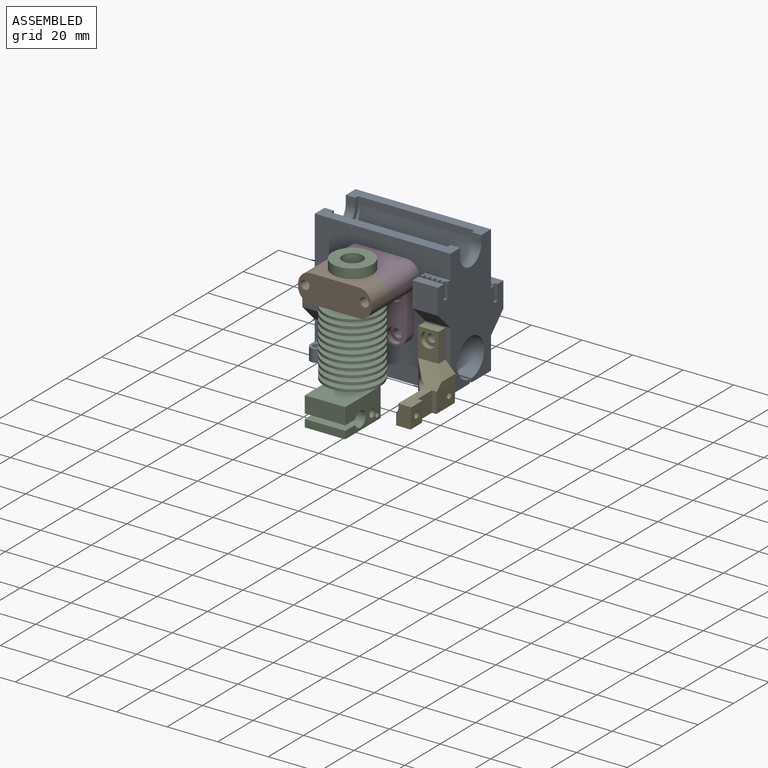
[diagram: assembled view]
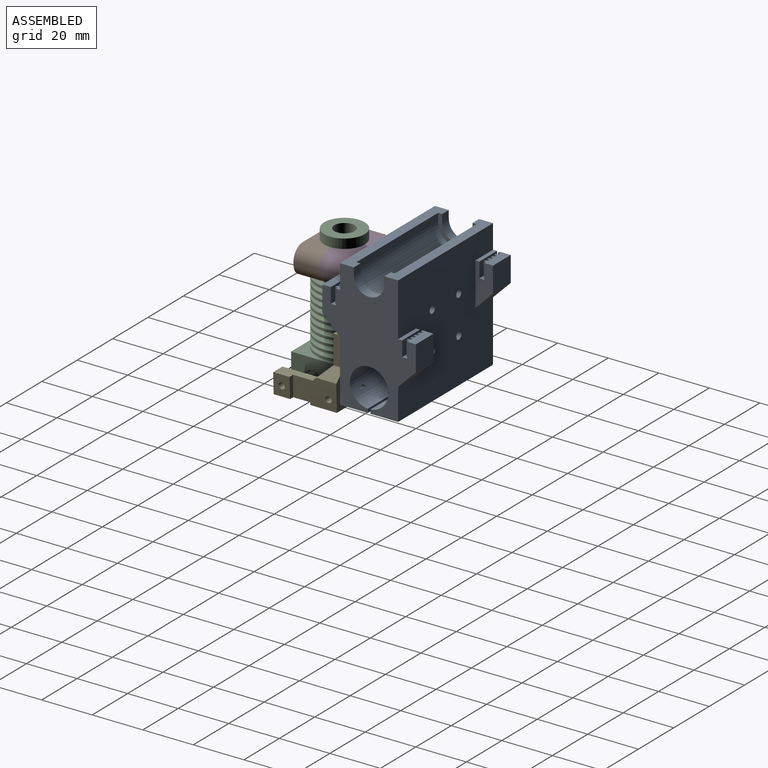
[diagram: assembled view, second angle]
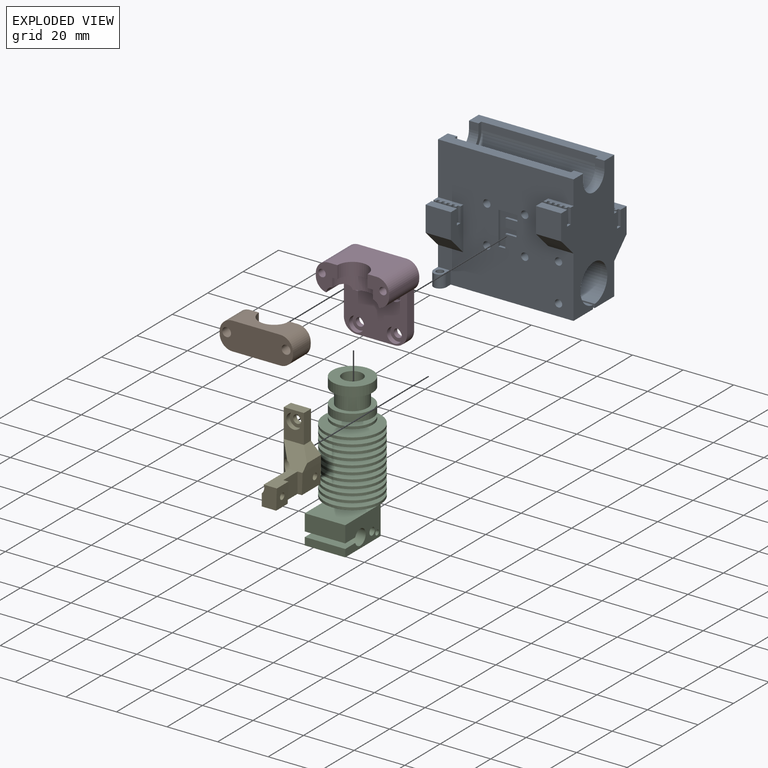
[diagram: exploded view]
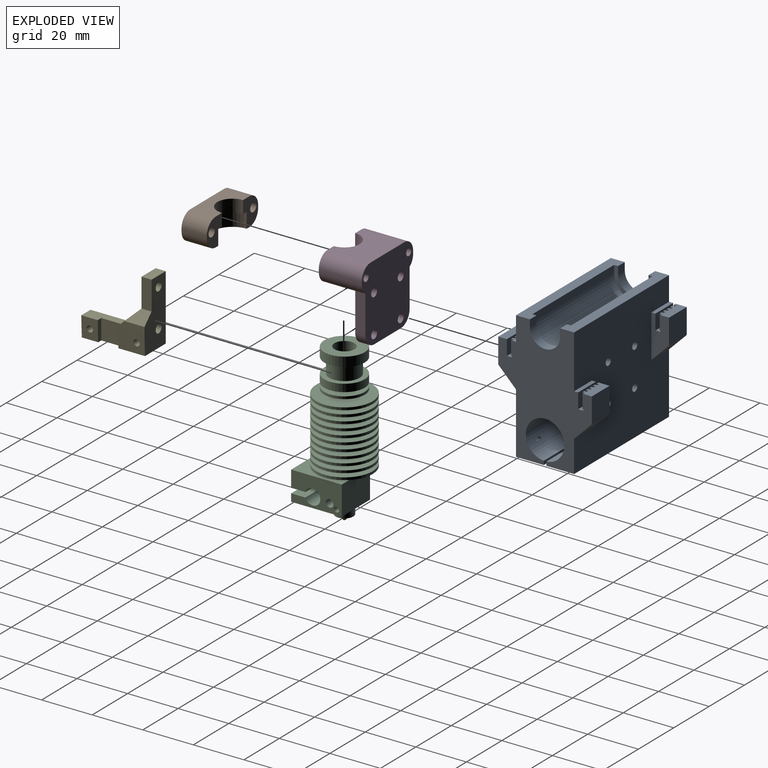
[diagram: exploded view, second angle]
ASSEMBLY  parts=5 mates=4
PART A: 149 faces, bbox 53.6x37x50.6 mm
  f0: plane 53.6x50.6mm, normal (0,-1,0), area 2250.2mm2, adj f1,f6,f7,f8,f16,f18,f19,f29
  f1: plane 50.6x37mm, normal (-1,0,0), area 1077.8mm2, adj f0,f2,f5,f8,f12,f17,f18,f19
  f2: plane 10x4.4mm, normal (0,0,1), area 39mm2, adj f1,f80,f81,f103,f104,f105,f106,f107
  f3: plane 17x7mm, normal (-1,0,0), area 88.5mm2, adj f4,f5,f77,f78,f94,f95,f102,f124
  f4: plane 10x4.4mm, normal (0,0,1), area 39mm2, adj f3,f16,f78,f82,f83,f84,f85,f86
  f5: plane 53.6x50.6mm, normal (0,1,0), area 2345.7mm2, adj f1,f3,f12,f16,f17,f77,f79,f80
  f6: plane 10x2.6mm, normal (0,0,1), area 21mm2, adj f0,f7,f16,f56,f57,f58,f59,f60
  f7: plane 17x7mm, normal (-1,0,0), area 88.5mm2, adj f0,f6,f31,f32,f33,f68,f69,f76
  f8: plane 10x2.6mm, normal (0,0,1), area 21mm2, adj f0,f1,f29,f35,f36,f37,f38,f39
  f9: plane 46.1x3mm, normal (0,-1,0), area 138.3mm2, adj f10,f12,f23,f27
  f10: cylinder r=7.6mm len=46.1mm, axis (-1,0,0), area 1100.7mm2, adj f9,f11,f23,f27
  f11: plane 46.1x3mm, normal (0,1,0), area 138.3mm2, adj f10,f19,f23,f27
  f12: plane 53.6x5.5mm, normal (0,0,1), area 221mm2, adj f1,f5,f9,f15,f16,f23,f24,f27
  f13: cylinder r=6mm len=12mm, axis (-1,0,0), area 70.7mm2, adj f14,f15,f16,f23
  f14: plane 3.75x3mm, normal (0,1,0), area 11.2mm2, adj f13,f16,f19,f23
  f15: plane 3.75x3mm, normal (0,-1,0), area 11.2mm2, adj f12,f13,f16,f23
  f16: plane 50.6x37mm, normal (1,0,0), area 1053.3mm2, adj f0,f4,f5,f6,f12,f13,f14,f15
  f17: plane 53.6x11mm, normal (0,0,-1), area 589.6mm2, adj f1,f5,f16,f21
  f18: plane 53.6x16mm, normal (0,0,-1), area 605.3mm2, adj f0,f1,f16,f22,f146,f147,f148
  f19: plane 53.6x5.5mm, normal (0,0,1), area 221mm2, adj f0,f1,f11,f14,f16,f23,f25,f27
  f20: cylinder r=7.6mm len=53.6mm, axis (-1,0,0), area 2489.8mm2, adj f1,f16,f21,f22,f127,f128,f130,f131
  f21: plane 53.6x1.52mm, normal (0,-1,0), area 81.3mm2, adj f1,f16,f17,f20
  f22: plane 53.6x1.52mm, normal (0,1,0), area 81.3mm2, adj f1,f16,f18,f20
  f23: plane 15.2x10.6mm, normal (-1,0,0), area 43.8mm2, adj f9,f10,f11,f12,f13,f14,f15,f19
  f24: plane 3.75x3mm, normal (0,-1,0), area 11.2mm2, adj f1,f12,f26,f27
  f25: plane 3.75x3mm, normal (0,1,0), area 11.2mm2, adj f1,f19,f26,f27
  f26: cylinder r=6mm len=12mm, axis (-1,0,0), area 70.7mm2, adj f1,f24,f25,f27
  f27: plane 15.2x10.6mm, normal (1,0,0), area 43.8mm2, adj f9,f10,f11,f12,f19,f24,f25,f26
  f28: plane 10x3.4mm, normal (0,0,1), area 34mm2, adj f1,f29,f30,f48
  f29: plane 17x7mm, normal (1,0,0), area 82.5mm2, adj f0,f8,f28,f30,f34,f48,f49,f55
  f30: plane 10x10mm, normal (0,-1,0), area 100mm2, adj f1,f28,f29,f34
  f31: plane 10x3.4mm, normal (0,0,1), area 34mm2, adj f7,f16,f32,f69
  f32: plane 10x10mm, normal (0,-1,0), area 100mm2, adj f7,f16,f31,f33
  f33: plane 10x7mm, normal (0,-0.71,-0.71), area 99mm2, adj f0,f7,f16,f32
  f34: plane 10x7mm, normal (0,-0.71,-0.71), area 99mm2, adj f0,f1,f29,f30
  f35: plane 6x1mm, normal (0,-1,0), area 6mm2, adj f8,f36,f54,f55
  f36: plane 6x1mm, normal (-1,0,0), area 6mm2, adj f8,f35,f37,f55
  f37: plane 6x1mm, normal (0,-1,0), area 6mm2, adj f8,f36,f38,f55
  f38: plane 6x1mm, normal (1,0,0), area 6mm2, adj f8,f37,f39,f55
  f39: plane 6x1mm, normal (0,-1,0), area 6mm2, adj f8,f38,f40,f55
  f40: plane 6x1mm, normal (-1,0,0), area 6mm2, adj f8,f39,f41,f55
  f41: plane 6x1mm, normal (0,-1,0), area 6mm2, adj f8,f40,f42,f55
  f42: plane 6x1mm, normal (1,0,0), area 6mm2, adj f8,f41,f43,f55
  f43: plane 6x1mm, normal (0,-1,0), area 6mm2, adj f8,f42,f44,f55
  f44: plane 6x1mm, normal (-1,0,0), area 6mm2, adj f8,f43,f45,f55
  f45: plane 6x1mm, normal (0,-1,0), area 6mm2, adj f8,f44,f46,f55
  f46: plane 6x1mm, normal (1,0,0), area 6mm2, adj f8,f45,f47,f55
  f47: plane 6x1mm, normal (0,-1,0), area 6mm2, adj f1,f8,f46,f55
  f48: plane 10x6mm, normal (0,1,0), area 60mm2, adj f1,f28,f29,f55
  f49: plane 6x1mm, normal (0,-1,0), area 6mm2, adj f8,f29,f50,f55
  f50: plane 6x1mm, normal (1,0,0), area 6mm2, adj f8,f49,f51,f55
  f51: plane 6x1mm, normal (0,-1,0), area 6mm2, adj f8,f50,f52,f55
  f52: plane 6x1mm, normal (-1,0,0), area 6mm2, adj f8,f51,f53,f55
  f53: plane 6x1mm, normal (0,-1,0), area 6mm2, adj f8,f52,f54,f55
  f54: plane 6x1mm, normal (1,0,0), area 6mm2, adj f8,f35,f53,f55
  f55: plane 10x2mm, normal (0,0,1), area 15mm2, adj f1,f29,f35,f36,f37,f38,f39,f40
  f56: plane 6x1mm, normal (0,-1,0), area 6mm2, adj f6,f57,f75,f76
  f57: plane 6x1mm, normal (-1,0,0), area 6mm2, adj f6,f56,f58,f76
  f58: plane 6x1mm, normal (0,-1,0), area 6mm2, adj f6,f57,f59,f76
  f59: plane 6x1mm, normal (1,0,0), area 6mm2, adj f6,f58,f60,f76
  f60: plane 6x1mm, normal (0,-1,0), area 6mm2, adj f6,f59,f61,f76
  f61: plane 6x1mm, normal (-1,0,0), area 6mm2, adj f6,f60,f62,f76
  f62: plane 6x1mm, normal (0,-1,0), area 6mm2, adj f6,f61,f63,f76
  f63: plane 6x1mm, normal (1,0,0), area 6mm2, adj f6,f62,f64,f76
  f64: plane 6x1mm, normal (0,-1,0), area 6mm2, adj f6,f63,f65,f76
  f65: plane 6x1mm, normal (-1,0,0), area 6mm2, adj f6,f64,f66,f76
  f66: plane 6x1mm, normal (0,-1,0), area 6mm2, adj f6,f65,f67,f76
  f67: plane 6x1mm, normal (1,0,0), area 6mm2, adj f6,f66,f68,f76
  f68: plane 6x1mm, normal (0,-1,0), area 6mm2, adj f6,f7,f67,f76
  f69: plane 10x6mm, normal (0,1,0), area 60mm2, adj f7,f16,f31,f76
  f70: plane 6x1mm, normal (0,-1,0), area 6mm2, adj f6,f16,f71,f76
  f71: plane 6x1mm, normal (1,0,0), area 6mm2, adj f6,f70,f72,f76
  f72: plane 6x1mm, normal (0,-1,0), area 6mm2, adj f6,f71,f73,f76
  f73: plane 6x1mm, normal (-1,0,0), area 6mm2, adj f6,f72,f74,f76
  f74: plane 6x1mm, normal (0,-1,0), area 6mm2, adj f6,f73,f75,f76
  f75: plane 6x1mm, normal (1,0,0), area 6mm2, adj f6,f56,f74,f76
  f76: plane 10x2mm, normal (0,0,1), area 15mm2, adj f7,f16,f56,f57,f58,f59,f60,f61
  f77: plane 10x1.6mm, normal (0,0,1), area 16mm2, adj f3,f5,f16,f95
  f78: plane 10x10mm, normal (0,1,0), area 100mm2, adj f3,f4,f16,f124
  f79: plane 10x1.6mm, normal (0,0,1), area 16mm2, adj f1,f5,f80,f116
  f80: plane 17x7mm, normal (1,0,0), area 82.5mm2, adj f2,f5,f79,f81,f116,f117,f123,f125
  f81: plane 10x10mm, normal (0,1,0), area 100mm2, adj f1,f2,f80,f125
  f82: plane 6x1mm, normal (0,-1,0), area 6mm2, adj f4,f83,f101,f102
  f83: plane 6x1mm, normal (-1,0,0), area 6mm2, adj f4,f82,f84,f102
  f84: plane 6x1mm, normal (0,-1,0), area 6mm2, adj f4,f83,f85,f102
  f85: plane 6x1mm, normal (1,0,0), area 6mm2, adj f4,f84,f86,f102
  f86: plane 6x1mm, normal (0,-1,0), area 6mm2, adj f4,f85,f87,f102
  f87: plane 6x1mm, normal (-1,0,0), area 6mm2, adj f4,f86,f88,f102
  f88: plane 6x1mm, normal (0,-1,0), area 6mm2, adj f4,f87,f89,f102
  f89: plane 6x1mm, normal (1,0,0), area 6mm2, adj f4,f88,f90,f102
  f90: plane 6x1mm, normal (0,-1,0), area 6mm2, adj f4,f89,f91,f102
  f91: plane 6x1mm, normal (-1,0,0), area 6mm2, adj f4,f90,f92,f102
  f92: plane 6x1mm, normal (0,-1,0), area 6mm2, adj f4,f91,f93,f102
  f93: plane 6x1mm, normal (1,0,0), area 6mm2, adj f4,f92,f94,f102
  f94: plane 6x1mm, normal (0,-1,0), area 6mm2, adj f3,f4,f93,f102
  f95: plane 10x6mm, normal (0,1,0), area 60mm2, adj f3,f16,f77,f102
  f96: plane 6x1mm, normal (0,-1,0), area 6mm2, adj f4,f16,f97,f102
  f97: plane 6x1mm, normal (1,0,0), area 6mm2, adj f4,f96,f98,f102
  f98: plane 6x1mm, normal (0,-1,0), area 6mm2, adj f4,f97,f99,f102
  f99: plane 6x1mm, normal (-1,0,0), area 6mm2, adj f4,f98,f100,f102
  f100: plane 6x1mm, normal (0,-1,0), area 6mm2, adj f4,f99,f101,f102
  f101: plane 6x1mm, normal (1,0,0), area 6mm2, adj f4,f82,f100,f102
  f102: plane 10x2mm, normal (0,0,1), area 15mm2, adj f3,f16,f82,f83,f84,f85,f86,f87
  f103: plane 6x1mm, normal (0,-1,0), area 6mm2, adj f2,f104,f122,f123
  f104: plane 6x1mm, normal (-1,0,0), area 6mm2, adj f2,f103,f105,f123
  f105: plane 6x1mm, normal (0,-1,0), area 6mm2, adj f2,f104,f106,f123
  f106: plane 6x1mm, normal (1,0,0), area 6mm2, adj f2,f105,f107,f123
  f107: plane 6x1mm, normal (0,-1,0), area 6mm2, adj f2,f106,f108,f123
  f108: plane 6x1mm, normal (-1,0,0), area 6mm2, adj f2,f107,f109,f123
  f109: plane 6x1mm, normal (0,-1,0), area 6mm2, adj f2,f108,f110,f123
  f110: plane 6x1mm, normal (1,0,0), area 6mm2, adj f2,f109,f111,f123
  f111: plane 6x1mm, normal (0,-1,0), area 6mm2, adj f2,f110,f112,f123
  f112: plane 6x1mm, normal (-1,0,0), area 6mm2, adj f2,f111,f113,f123
  f113: plane 6x1mm, normal (0,-1,0), area 6mm2, adj f2,f112,f114,f123
  f114: plane 6x1mm, normal (1,0,0), area 6mm2, adj f2,f113,f115,f123
  f115: plane 6x1mm, normal (0,-1,0), area 6mm2, adj f1,f2,f114,f123
  f116: plane 10x6mm, normal (0,1,0), area 60mm2, adj f1,f79,f80,f123
  f117: plane 6x1mm, normal (0,-1,0), area 6mm2, adj f2,f80,f118,f123
  f118: plane 6x1mm, normal (1,0,0), area 6mm2, adj f2,f117,f119,f123
  f119: plane 6x1mm, normal (0,-1,0), area 6mm2, adj f2,f118,f120,f123
  f120: plane 6x1mm, normal (-1,0,0), area 6mm2, adj f2,f119,f121,f123
  f121: plane 6x1mm, normal (0,-1,0), area 6mm2, adj f2,f120,f122,f123
  f122: plane 6x1mm, normal (1,0,0), area 6mm2, adj f2,f103,f121,f123
  f123: plane 10x2mm, normal (0,0,1), area 15mm2, adj f1,f80,f103,f104,f105,f106,f107,f108
  f124: plane 10x7mm, normal (0,0.71,-0.71), area 99mm2, adj f3,f5,f16,f78
  f125: plane 10x7mm, normal (0,0.71,-0.71), area 99mm2, adj f1,f5,f80,f81
  f126: cylinder r=1.45mm len=23mm, axis (0,-1,0), area 209.5mm2, adj f0,f5
  f127: cylinder r=1.45mm len=23mm, axis (0,-1,0), area 202.2mm2, adj f0,f5,f20
  f128: cylinder r=1.45mm len=23mm, axis (0,-1,0), area 202.2mm2, adj f0,f5,f20
  f129: cylinder r=1.45mm len=23mm, axis (0,-1,0), area 209.5mm2, adj f0,f5
  f130: cylinder r=1.45mm len=5mm, axis (0,-1,0), area 44.4mm2, adj f0,f20,f131
  f131: plane 2.9x1.96mm, normal (0,-1,0), area 4.8mm2, adj f20,f130
  f132: cylinder r=1.45mm len=5mm, axis (0,-1,0), area 45.6mm2, adj f0,f133
  f133: plane 2.9x2.9mm, normal (0,-1,0), area 6.6mm2, adj f132
  f134: plane 2.75x1mm, normal (0,0,1), area 2.7mm2, adj f0,f135,f143,f144
  f135: plane 5.2x1mm, normal (-1,0,0), area 5.2mm2, adj f0,f134,f136,f144
  f136: plane 4.47x1mm, normal (0,0,1), area 4.5mm2, adj f0,f135,f137,f144
  f137: plane 2.28x1mm, normal (-1,0,0), area 2.3mm2, adj f0,f136,f138,f144
  f138: plane 4.47x1mm, normal (0,0,-1), area 4.5mm2, adj f0,f137,f139,f144
  f139: plane 3.39x1mm, normal (-1,0,0), area 3.4mm2, adj f0,f138,f140,f144
  f140: plane 4.8x1mm, normal (0,0,1), area 4.8mm2, adj f0,f139,f141,f144
  f141: plane 2.29x1mm, normal (-1,0,0), area 2.3mm2, adj f0,f140,f142,f144
  f142: plane 7.55x1mm, normal (0,0,-1), area 7.5mm2, adj f0,f141,f143,f144
  f143: plane 13.17x1mm, normal (1,0,0), area 13.2mm2, adj f0,f134,f142,f144
  f144: plane 13.17x7.55mm, normal (0,-1,0), area 57.3mm2, adj f134,f135,f136,f137,f138,f139,f140,f141
  f145: plane 5x5mm, normal (0,0,1), area 15.7mm2, adj f0,f1,f146,f147,f148
  f146: plane 5x2.5mm, normal (1,0,0), area 12.5mm2, adj f0,f18,f145,f148
  f147: cylinder r=1.45mm len=5mm, axis (0,0,1), area 45.6mm2, adj f18,f145
  f148: cylinder r=2.5mm len=5mm, axis (0,0,-1), area 39.3mm2, adj f1,f18,f145,f146
PART B: 16 faces, bbox 29x11x10 mm
  f0: plane 11x8.5mm, normal (0,0,1), area 61.1mm2, adj f1,f2,f5,f6,f7,f9,f10,f11
  f1: plane 19x10mm, normal (0,-1,0), area 89.5mm2, adj f0,f3,f4,f5,f11,f12
  f2: plane 19x10mm, normal (0,1,0), area 133.5mm2, adj f0,f3,f4,f7,f10,f13
  f3: plane 11x8.5mm, normal (0,0,1), area 61.1mm2, adj f1,f2,f5,f6,f7,f8,f12,f13
  f4: plane 29x11mm, normal (0,0,-1), area 278.3mm2, adj f1,f2,f8,f9,f10,f11,f12,f13
  f5: cylinder r=8mm len=16mm, axis (0,-1,0), area 150.8mm2, adj f0,f1,f3,f6
  f6: plane 16x8mm, normal (0,-1,0), area 44mm2, adj f0,f3,f5,f7
  f7: cylinder r=6mm len=12mm, axis (0,1,0), area 94.2mm2, adj f0,f2,f3,f6
  f8: plane 10x1mm, normal (-1,0,0), area 10mm2, adj f3,f4,f12,f13
  f9: plane 10x1mm, normal (1,0,0), area 10mm2, adj f0,f4,f10,f11
  f10: cylinder r=5mm len=10mm, axis (0,0,-1), area 78.5mm2, adj f0,f2,f4,f9
  f11: cylinder r=5mm len=10mm, axis (0,0,1), area 78.5mm2, adj f0,f1,f4,f9
  f12: cylinder r=5mm len=10mm, axis (0,0,1), area 78.5mm2, adj f1,f3,f4,f8
  f13: cylinder r=5mm len=10mm, axis (0,0,-1), area 78.5mm2, adj f2,f3,f4,f8
  f14: cylinder r=1.75mm len=10mm, axis (0,0,1), area 110mm2, adj f0,f4
  f15: cylinder r=1.75mm len=10mm, axis (0,0,1), area 110mm2, adj f3,f4
PART C: 92 faces, bbox 26.7x22.3x62 mm
  f0: cylinder r=2.1mm len=18.9mm, axis (0,0,1), area 249.4mm2, adj f57,f59
  f1: cylinder r=8mm len=16mm, axis (0,0,1), area 186mm2, adj f2,f3
  f2: plane 16x16mm, normal (0,0,-1), area 88mm2, adj f1,f4
  f3: plane 16x16mm, normal (0,0,1), area 150.8mm2, adj f1,f56
  f4: cylinder r=6mm len=12mm, axis (0,0,1), area 226.2mm2, adj f2,f7
  f5: cylinder r=8mm len=16mm, axis (0,0,1), area 150.8mm2, adj f6,f7
  f6: plane 16x16mm, normal (0,0,-1), area 150.8mm2, adj f5,f55
  f7: plane 16x16mm, normal (0,0,1), area 88mm2, adj f4,f5
  f8: plane 22.3x22.3mm, normal (0,0,-1), area 359.9mm2, adj f9,f60
  f9: cylinder r=11.15mm len=22.3mm, axis (0,0,1), area 70.1mm2, adj f8,f10
  f10: plane 22.3x22.3mm, normal (0,0,1), area 277.5mm2, adj f9,f11
  f11: cone r=5.89mm half-angle=4.2deg, axis (0,0,-1), area 56.2mm2, adj f10,f12
  f12: plane 22.3x22.3mm, normal (0,0,-1), area 281.5mm2, adj f11,f13
  f13: cylinder r=11.15mm len=22.3mm, axis (0,0,1), area 70.1mm2, adj f12,f14
  f14: plane 22.3x22.3mm, normal (0,0,1), area 284.2mm2, adj f13,f15
  f15: cone r=5.71mm half-angle=4.2deg, axis (0,0,-1), area 54.5mm2, adj f14,f16
  f16: plane 22.3x22.3mm, normal (0,0,-1), area 288.2mm2, adj f15,f17
  f17: cylinder r=11.15mm len=22.3mm, axis (0,0,1), area 70.1mm2, adj f16,f18
  f18: plane 22.3x22.3mm, normal (0,0,1), area 290.8mm2, adj f17,f19
  f19: cone r=5.53mm half-angle=4.2deg, axis (0,0,-1), area 52.7mm2, adj f18,f20
  f20: plane 22.3x22.3mm, normal (0,0,-1), area 294.6mm2, adj f19,f21
  f21: cylinder r=11.15mm len=22.3mm, axis (0,0,1), area 70.1mm2, adj f20,f22
  f22: plane 22.3x22.3mm, normal (0,0,1), area 297.1mm2, adj f21,f23
  f23: cone r=5.35mm half-angle=4.2deg, axis (0,0,-1), area 51mm2, adj f22,f24
  f24: plane 22.3x22.3mm, normal (0,0,-1), area 300.8mm2, adj f23,f25
  f25: cylinder r=11.15mm len=22.3mm, axis (0,0,1), area 70.1mm2, adj f24,f26
  f26: plane 22.3x22.3mm, normal (0,0,1), area 303.2mm2, adj f25,f27
  f27: cone r=5.16mm half-angle=4.2deg, axis (0,0,-1), area 49.3mm2, adj f26,f28
  f28: plane 22.3x22.3mm, normal (0,0,-1), area 306.8mm2, adj f27,f29
  f29: cylinder r=11.15mm len=22.3mm, axis (0,0,1), area 70.1mm2, adj f28,f30
  f30: plane 22.3x22.3mm, normal (0,0,1), area 309.1mm2, adj f29,f31
  f31: cone r=4.98mm half-angle=4.2deg, axis (0,0,-1), area 47.6mm2, adj f30,f32
  f32: plane 22.3x22.3mm, normal (0,0,-1), area 312.6mm2, adj f31,f33
  f33: cylinder r=11.15mm len=22.3mm, axis (0,0,1), area 70.1mm2, adj f32,f34
  f34: plane 22.3x22.3mm, normal (0,0,1), area 314.9mm2, adj f33,f35
  f35: cone r=4.8mm half-angle=4.2deg, axis (0,0,-1), area 45.9mm2, adj f34,f36
  f36: plane 22.3x22.3mm, normal (0,0,-1), area 318.2mm2, adj f35,f37
  f37: cylinder r=11.15mm len=22.3mm, axis (0,0,1), area 70.1mm2, adj f36,f38
  f38: plane 22.3x22.3mm, normal (0,0,1), area 320.4mm2, adj f37,f39
  f39: cone r=4.62mm half-angle=4.2deg, axis (0,0,-1), area 44.2mm2, adj f38,f40
  f40: plane 22.3x22.3mm, normal (0,0,-1), area 323.6mm2, adj f39,f41
  f41: cylinder r=11.15mm len=22.3mm, axis (0,0,1), area 70.1mm2, adj f40,f42
  f42: plane 22.3x22.3mm, normal (0,0,1), area 325.7mm2, adj f41,f43
  f43: cone r=4.44mm half-angle=4.2deg, axis (0,0,-1), area 42.4mm2, adj f42,f44
  f44: plane 22.3x22.3mm, normal (0,0,-1), area 328.7mm2, adj f43,f45
  f45: cylinder r=11.15mm len=22.3mm, axis (0,0,1), area 70.1mm2, adj f44,f46
  f46: plane 22.3x22.3mm, normal (0,0,1), area 330.8mm2, adj f45,f47
  f47: cone r=4.25mm half-angle=4.2deg, axis (0,0,-1), area 40.7mm2, adj f46,f48
  f48: plane 22.3x22.3mm, normal (0,0,-1), area 333.7mm2, adj f47,f49
  f49: cylinder r=11.15mm len=22.3mm, axis (0,0,1), area 70.1mm2, adj f48,f50
  f50: plane 22.3x22.3mm, normal (0,0,1), area 335.6mm2, adj f49,f51
  f51: cone r=4.07mm half-angle=4.2deg, axis (0,0,-1), area 39mm2, adj f50,f52
  f52: plane 16x16mm, normal (0,0,-1), area 149mm2, adj f51,f53
  f53: cylinder r=8mm len=16mm, axis (0,0,1), area 50.3mm2, adj f52,f54
  f54: plane 16x16mm, normal (0,0,1), area 150.8mm2, adj f53,f55
  f55: cylinder r=4mm len=8mm, axis (0,0,1), area 37.7mm2, adj f6,f54
  f56: cylinder r=4mm len=8mm, axis (0,0,1), area 153.3mm2, adj f3,f57
  f57: cone r=4.1mm half-angle=45deg, axis (0,0,1), area 51.5mm2, adj f0,f56
  f58: cylinder r=3mm len=14.9mm, axis (0,0,-1), area 280.9mm2, adj f59,f85
  f59: cone r=3.1mm half-angle=45deg, axis (0,0,-1), area 20.4mm2, adj f0,f58
  f60: cylinder r=3.12mm len=6.25mm, axis (0,0,1), area 49.1mm2, adj f8,f80
  f61: cylinder r=2.75mm len=5.5mm, axis (0,0,-1), area 25.9mm2, adj f62,f67
  f62: plane 7x7mm, normal (0,0,1), area 14.7mm2, adj f61,f63
  f63: cylinder r=3.5mm len=7mm, axis (0,0,-1), area 66mm2, adj f62,f64
  f64: plane 7x7mm, normal (0,0,-1), area 27.1mm2, adj f63,f65
  f65: cone r=0.5mm half-angle=35deg, axis (0,0,1), area 18.4mm2, adj f64,f66
  f66: plane 1x1mm, normal (0,0,-1), area 0.8mm2, adj f65
  f67: plane 6x6mm, normal (0,0,-1), area 4.5mm2, adj f61,f74
  f68: plane 1.6x1.6mm, normal (0,-1,0), area 2mm2, adj f69
  f69: cylinder r=0.8mm len=2.5mm, axis (0,-1,0), area 12.6mm2, adj f68,f70
  f70: plane 2x2mm, normal (0,-1,0), area 1.1mm2, adj f69,f71
  f71: cylinder r=1mm len=2mm, axis (0,-1,0), area 12.6mm2, adj f70,f76
  f72: plane 3x3mm, normal (0,-1,0), area 7.1mm2, adj f73
  f73: cylinder r=1.5mm len=3.5mm, axis (0,-1,0), area 33mm2, adj f72,f76
  f74: cylinder r=3mm len=6mm, axis (0,0,-1), area 23.6mm2, adj f67,f82
  f75: plane 20x11.5mm, normal (0,1,0), area 189.8mm2, adj f77,f78,f79,f80,f81,f82,f83,f84
  f76: plane 20x11.5mm, normal (0,-1,0), area 179.6mm2, adj f71,f73,f77,f78,f79,f80,f81,f82
  f77: cylinder r=3.05mm len=16mm, axis (0,1,0), area 274mm2, adj f75,f76,f78,f84
  f78: plane 16x5.62mm, normal (0,0,-1), area 89.9mm2, adj f75,f76,f77,f79
  f79: plane 16x6.5mm, normal (-1,0,0), area 104mm2, adj f75,f76,f78,f80
  f80: plane 20x16mm, normal (0,0,1), area 289.3mm2, adj f60,f75,f76,f79,f81
  f81: plane 16x11.5mm, normal (1,0,0), area 184mm2, adj f75,f76,f80,f82
  f82: plane 20x16mm, normal (0,0,-1), area 291.7mm2, adj f74,f75,f76,f81,f83
  f83: plane 16x3mm, normal (-1,0,0), area 48mm2, adj f75,f76,f82,f84
  f84: plane 16x5.62mm, normal (0,0,1), area 89.9mm2, adj f75,f76,f77,f83
  f85: plane 6x6mm, normal (0,0,1), area 15.7mm2, adj f58,f86
  f86: cylinder r=2mm len=4.61mm, axis (0,0,1), area 57.9mm2, adj f85,f87
  f87: plane 6x6mm, normal (0,0,-1), area 15.7mm2, adj f86,f88
  f88: cylinder r=3mm len=7.89mm, axis (0,0,-1), area 148.8mm2, adj f87,f91
  f89: plane 5x5mm, normal (0,0,1), area 19.6mm2, adj f90
  f90: cylinder r=2.5mm len=5mm, axis (0,0,-1), area 27.5mm2, adj f89,f91
  f91: plane 6x6mm, normal (0,0,1), area 8.6mm2, adj f88,f90
PART D: 34 faces, bbox 29x30x17 mm
  f0: plane 9.06x6.41mm, normal (0,-1,0), area 49.4mm2, adj f1,f14,f18,f20
  f1: cylinder r=8mm len=16mm, axis (0,-1,0), area 116.2mm2, adj f0,f8,f16,f17,f18,f20
  f2: cylinder r=5mm len=17mm, axis (0,0,-1), area 108.2mm2, adj f12,f14,f15,f16,f18,f29
  f3: cylinder r=5mm len=17mm, axis (0,0,-1), area 108.2mm2, adj f8,f10,f14,f15,f20,f26
  f4: cylinder r=1.68mm len=3.35mm, axis (0,0,1), area 21mm2, adj f15,f21
  f5: cylinder r=1.68mm len=3.35mm, axis (0,0,1), area 21mm2, adj f15,f25
  f6: cylinder r=1.68mm len=3.35mm, axis (0,0,1), area 21mm2, adj f15,f23
  f7: cylinder r=1.68mm len=3.35mm, axis (0,0,1), area 21mm2, adj f15,f19
  f8: plane 10.91x8.5mm, normal (0,0,1), area 59.7mm2, adj f1,f3,f9,f13,f17,f20,f26,f31
  f9: cylinder r=6mm len=12mm, axis (0,1,0), area 94.2mm2, adj f8,f13,f16,f17
  f10: plane 15x4mm, normal (-1,0,0), area 60mm2, adj f3,f14,f15,f27
  f11: plane 15x4mm, normal (0,-1,0), area 60mm2, adj f14,f15,f27,f28
  f12: plane 15x4mm, normal (1,0,0), area 60mm2, adj f2,f14,f15,f28
  f13: plane 19x17mm, normal (0,1,0), area 266.5mm2, adj f8,f9,f15,f16,f32,f33
  f14: plane 25x20mm, normal (0,0,1), area 376mm2, adj f0,f2,f3,f10,f11,f12,f18,f20
  f15: plane 30x29mm, normal (0,0,-1), area 715.3mm2, adj f2,f3,f4,f5,f6,f7,f10,f11
  f16: plane 10.91x8.5mm, normal (0,0,1), area 59.7mm2, adj f1,f2,f9,f13,f17,f18,f29,f30
  f17: plane 16x8mm, normal (0,-1,0), area 44mm2, adj f1,f8,f9,f16
  f18: cylinder r=3mm len=15mm, axis (0,0,1), area 123.4mm2, adj f0,f1,f2,f14,f16,f19
  f19: plane 6x6mm, normal (0,0,1), area 19.5mm2, adj f7,f18
  f20: cylinder r=3mm len=15mm, axis (0,0,1), area 123.4mm2, adj f0,f1,f3,f8,f14,f21
  f21: plane 6x6mm, normal (0,0,1), area 19.5mm2, adj f4,f20
  f22: cylinder r=3mm len=6mm, axis (0,0,1), area 37.7mm2, adj f14,f23
  f23: plane 6x6mm, normal (0,0,1), area 19.5mm2, adj f6,f22
  f24: cylinder r=3mm len=6mm, axis (0,0,1), area 37.7mm2, adj f14,f25
  f25: plane 6x6mm, normal (0,0,1), area 19.5mm2, adj f5,f24
  f26: plane 17x1mm, normal (-1,0,0), area 17mm2, adj f3,f8,f15,f33
  f27: cylinder r=5mm len=5mm, axis (0,0,1), area 31.4mm2, adj f10,f11,f14,f15
  f28: cylinder r=5mm len=5mm, axis (0,0,-1), area 31.4mm2, adj f11,f12,f14,f15
  f29: plane 17x1mm, normal (1,0,0), area 17mm2, adj f2,f15,f16,f32
  f30: cylinder r=1.45mm len=17mm, axis (0,0,1), area 154.9mm2, adj f15,f16
  f31: cylinder r=1.45mm len=17mm, axis (0,0,1), area 154.9mm2, adj f8,f15
  f32: cylinder r=5mm len=17mm, axis (0,0,-1), area 133.5mm2, adj f13,f15,f16,f29
  f33: cylinder r=5mm len=17mm, axis (0,0,-1), area 133.5mm2, adj f8,f13,f15,f26
PART E: 27 faces, bbox 12x25x25.9 mm
  f0: plane 25x11.72mm, normal (0,0,-1), area 171.3mm2, adj f2,f6,f8,f10,f12,f13,f14,f16
  f1: plane 14.5x5.22mm, normal (0,0,1), area 59.6mm2, adj f6,f12,f16,f18,f19,f25
  f2: plane 15x4.65mm, normal (-1,0,0), area 65.6mm2, adj f0,f4,f12,f13,f19
  f3: cylinder r=1.25mm len=6.4mm, axis (-1,0,0), area 47.7mm2, adj f5,f19,f26
  f4: cylinder r=1.25mm len=5.9mm, axis (-1,0,0), area 45.2mm2, adj f2,f19,f25
  f5: plane 2.5x1.59mm, normal (1,0,0), area 3.3mm2, adj f3,f19
  f6: plane 8x8mm, normal (1,0,0), area 64mm2, adj f0,f1,f14,f16
  f7: plane 11.39x4mm, normal (1,0,0), area 45.5mm2, adj f9,f10,f11,f17
  f8: plane 25.89x4mm, normal (-1,0,0), area 103.5mm2, adj f0,f9,f10,f11,f13
  f9: plane 8x4mm, normal (0,0,1), area 32mm2, adj f7,f8,f10,f11
  f10: plane 25.89x12mm, normal (0,1,0), area 238.3mm2, adj f0,f7,f8,f9,f15,f17,f23,f24
  f11: plane 11.39x8mm, normal (0,-1,0), area 62.8mm2, adj f7,f8,f9,f18,f21
  f12: plane 8x6mm, normal (0,-1,0), area 44.3mm2, adj f0,f1,f2,f19,f25
  f13: plane 14.5x6mm, normal (-0.71,-0.71,0), area 62.7mm2, adj f0,f2,f8,f18,f19
  f14: plane 8x2mm, normal (0,-1,0), area 14.9mm2, adj f0,f6,f18,f26
  f15: plane 10.5x2.5mm, normal (1,0,0), area 23.1mm2, adj f10,f17,f18,f26
  f16: plane 8x2mm, normal (0,1,0), area 14.9mm2, adj f0,f1,f6,f25
  f17: plane 8x4mm, normal (0.71,0,0.71), area 33.9mm2, adj f7,f10,f15,f18
  f18: plane 12x6.5mm, normal (0,-0.71,0.71), area 67.9mm2, adj f1,f11,f13,f14,f15,f17,f19
  f19: cylinder r=3mm len=23mm, axis (0,-1,0), area 160.5mm2, adj f1,f2,f3,f4,f5,f12,f13,f18
  f20: plane 6x6mm, normal (0,-1,0), area 19.5mm2, adj f19,f23
  f21: cylinder r=3mm len=6mm, axis (0,-1,0), area 37.7mm2, adj f11,f22
  f22: plane 6x6mm, normal (0,-1,0), area 19.5mm2, adj f21,f24
  f23: cylinder r=1.68mm len=3.35mm, axis (0,-1,0), area 21mm2, adj f10,f20
  f24: cylinder r=1.68mm len=3.35mm, axis (0,-1,0), area 21mm2, adj f10,f22
  f25: plane 8.02x6.52mm, normal (1,0,-0.03), area 47.1mm2, adj f0,f1,f4,f12,f16
  f26: plane 10.52x8.02mm, normal (1,0,-0.03), area 79.1mm2, adj f0,f3,f10,f14,f15
PLACE A t=(-53.6,0,0)mm
PLACE B rot(axis=(0,0.71,0.71),180deg) t=(-14.3,-27,33.24)mm
PLACE C rot(axis=(0,0,1),90deg) t=(-26.8,-17,48.34)mm
PLACE D rot(axis=(1,0,0),90deg) t=(-39.3,0,14.24)mm
PLACE E t=(-1.95,-4,-0.23)mm
MATE fastened D.f4 <-> A.f129  axis (0,1,0) through (-34.3,0,32.8)mm
MATE fastened E.f19 <-> A.f130  axis (0,1,0) through (-5.95,0,4.65)mm
MATE fastened B.f3 <-> D.f16  axis (0,1,0) through (-12.3,-17,39.24)mm
MATE fastened C.f0 <-> D.f1  axis (0,0,1) through (-26.8,-17,42.24)mm
